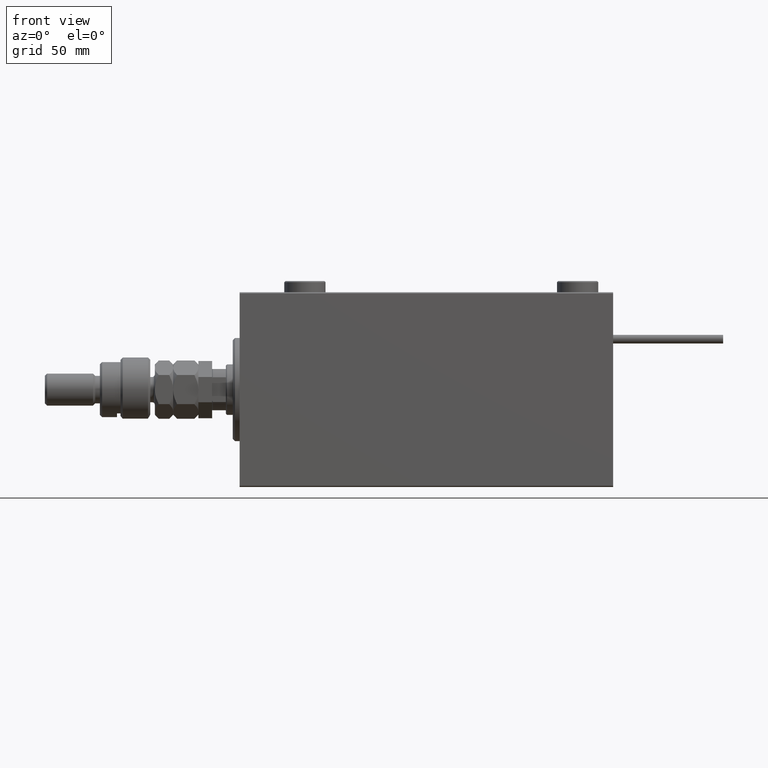
[diagram: clean part render]
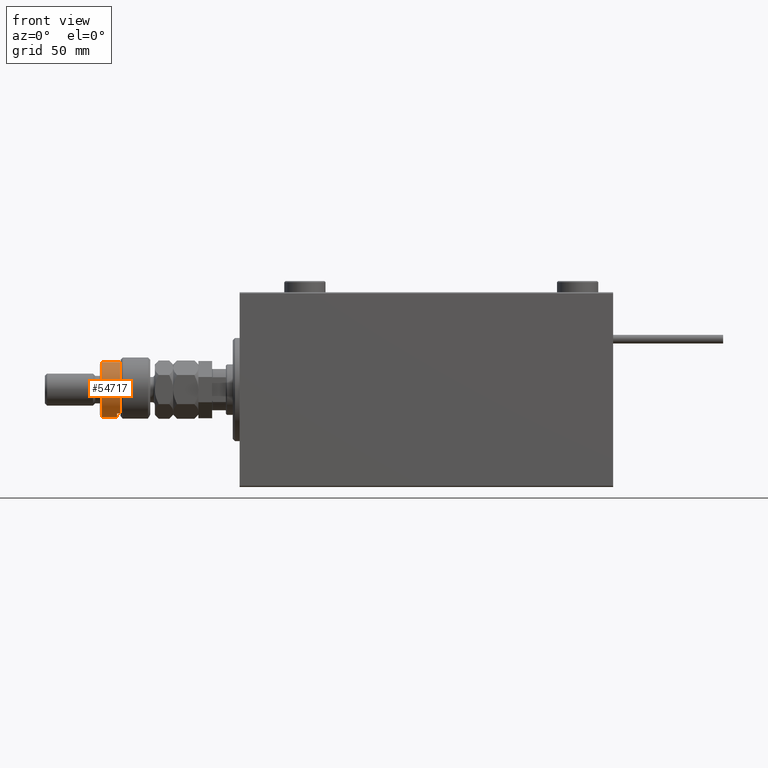
[diagram: same view with one face highlighted and labeled with its STEP entity id]
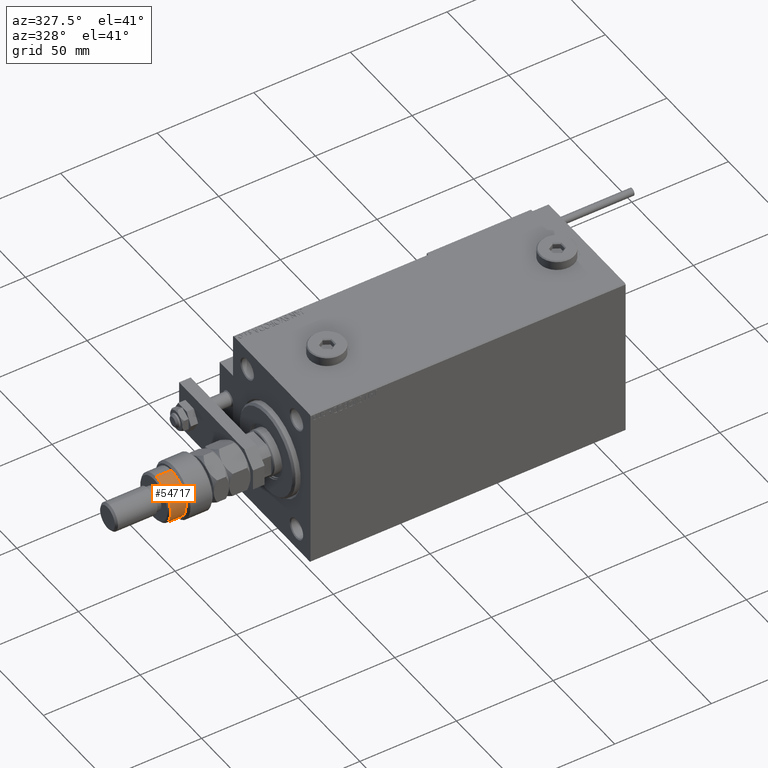
[diagram: same view with one face highlighted and labeled with its STEP entity id]
A machine part, front view. The second image highlights one B-rep face of the part: STEP entity #54717.
A second angle (auxiliary view) of the same face is appended — the face is thin or edge-on in the first view.
In plain terms, the highlighted cylindrical surface (edge-blend (fillet) strip) has radius 12 mm, axis along (1, 0, -0).
Its self-contained STEP definition (entity closure, byte-faithful):
#128 = CIRCLE ( 'NONE', #26053, 12.00000000000000178 ) ;
#645 = ORIENTED_EDGE ( 'NONE', *, *, #54877, .T. ) ;
#754 = CARTESIAN_POINT ( 'NONE',  ( -12.00000000000000178, 0.000000000000000000, 22.00000000000000000 ) ) ;
#2570 = ORIENTED_EDGE ( 'NONE', *, *, #11657, .T. ) ;
#3044 = VERTEX_POINT ( 'NONE', #4050 ) ;
#4050 = CARTESIAN_POINT ( 'NONE',  ( -12.00000000000000178, 0.000000000000000000, 20.99999999999999645 ) ) ;
#5300 = ORIENTED_EDGE ( 'NONE', *, *, #53088, .T. ) ;
#5442 = CARTESIAN_POINT ( 'NONE',  ( 12.00000000000000178, 1.469576158976824144E-15, 22.00000000000000000 ) ) ;
#6163 = EDGE_CURVE ( 'NONE', #9306, #53001, #22360, .T. ) ;
#8373 = CARTESIAN_POINT ( 'NONE',  ( 0.000000000000000000, 0.000000000000000000, 14.50000000000000000 ) ) ;
#9212 = DIRECTION ( 'NONE',  ( -0.000000000000000000, -0.000000000000000000, -1.000000000000000000 ) ) ;
#9306 = VERTEX_POINT ( 'NONE', #32058 ) ;
#9447 = VERTEX_POINT ( 'NONE', #47711 ) ;
#10038 = CARTESIAN_POINT ( 'NONE',  ( -10.39230484541326760, -6.000000000000000000, 22.00000000000000000 ) ) ;
#11657 = EDGE_CURVE ( 'NONE', #22368, #9447, #51218, .T. ) ;
#13142 = FACE_OUTER_BOUND ( 'NONE', #36425, .T. ) ;
#17522 = DIRECTION ( 'NONE',  ( 1.000000000000000000, 0.000000000000000000, 0.000000000000000000 ) ) ;
#18166 = CYLINDRICAL_SURFACE ( 'NONE', #41322, 12.00000000000000178 ) ;
#20051 = ORIENTED_EDGE ( 'NONE', *, *, #6163, .F. ) ;
#20639 = ORIENTED_EDGE ( 'NONE', *, *, #36422, .T. ) ;
#21952 = LINE ( 'NONE', #5442, #52616 ) ;
#22258 = ORIENTED_EDGE ( 'NONE', *, *, #45530, .F. ) ;
#22360 = CIRCLE ( 'NONE', #53664, 12.00000000000000178 ) ;
#22368 = VERTEX_POINT ( 'NONE', #25159 ) ;
#23420 = CARTESIAN_POINT ( 'NONE',  ( 12.00000000000000178, 1.469576158976824144E-15, 20.99999999999999645 ) ) ;
#23509 = AXIS2_PLACEMENT_3D ( 'NONE', #51652, #38779, #17522 ) ;
#25142 = DIRECTION ( 'NONE',  ( -1.000000000000000000, 0.000000000000000000, 0.000000000000000000 ) ) ;
#25159 = CARTESIAN_POINT ( 'NONE',  ( -10.39230484541326760, -6.000000000000000000, 13.00000000000000000 ) ) ;
#25243 = VECTOR ( 'NONE', #35489, 1000.000000000000000 ) ;
#26053 = AXIS2_PLACEMENT_3D ( 'NONE', #31191, #47445, #39324 ) ;
#26224 = DIRECTION ( 'NONE',  ( -0.000000000000000000, -0.000000000000000000, -1.000000000000000000 ) ) ;
#31008 = CARTESIAN_POINT ( 'NONE',  ( 0.000000000000000000, 0.000000000000000000, 22.00000000000000000 ) ) ;
#31191 = CARTESIAN_POINT ( 'NONE',  ( 0.000000000000000000, 0.000000000000000000, 20.99999999999999645 ) ) ;
#32058 = CARTESIAN_POINT ( 'NONE',  ( -10.39230484541326582, -5.999999999999998224, 14.50000000000000000 ) ) ;
#33052 = VECTOR ( 'NONE', #26224, 1000.000000000000000 ) ;
#34544 = DIRECTION ( 'NONE',  ( -0.000000000000000000, -0.000000000000000000, -1.000000000000000000 ) ) ;
#35216 = DIRECTION ( 'NONE',  ( -1.000000000000000000, 0.000000000000000000, 0.000000000000000000 ) ) ;
#35489 = DIRECTION ( 'NONE',  ( -0.000000000000000000, -0.000000000000000000, -1.000000000000000000 ) ) ;
#36422 = EDGE_CURVE ( 'NONE', #3044, #53001, #42482, .T. ) ;
#36425 = EDGE_LOOP ( 'NONE', ( #22258, #5300, #20639, #20051, #645, #2570 ) ) ;
#37945 = CARTESIAN_POINT ( 'NONE',  ( -12.00000000000000178, 0.000000000000000000, 14.50000000000000000 ) ) ;
#38779 = DIRECTION ( 'NONE',  ( 0.000000000000000000, 0.000000000000000000, 1.000000000000000000 ) ) ;
#39324 = DIRECTION ( 'NONE',  ( 1.000000000000000000, 0.000000000000000000, 0.000000000000000000 ) ) ;
#41322 = AXIS2_PLACEMENT_3D ( 'NONE', #31008, #9212, #35216 ) ;
#42482 = LINE ( 'NONE', #754, #33052 ) ;
#45530 = EDGE_CURVE ( 'NONE', #54058, #9447, #21952, .T. ) ;
#47445 = DIRECTION ( 'NONE',  ( 0.000000000000000000, 0.000000000000000000, -1.000000000000000000 ) ) ;
#47711 = CARTESIAN_POINT ( 'NONE',  ( 12.00000000000000178, 1.469576158976824144E-15, 13.00000000000000000 ) ) ;
#48377 = LINE ( 'NONE', #10038, #25243 ) ;
#51196 = DIRECTION ( 'NONE',  ( 0.000000000000000000, 0.000000000000000000, -1.000000000000000000 ) ) ;
#51218 = CIRCLE ( 'NONE', #23509, 12.00000000000000178 ) ;
#51652 = CARTESIAN_POINT ( 'NONE',  ( 0.000000000000000000, 0.000000000000000000, 13.00000000000000000 ) ) ;
#52616 = VECTOR ( 'NONE', #34544, 1000.000000000000000 ) ;
#53001 = VERTEX_POINT ( 'NONE', #37945 ) ;
#53088 = EDGE_CURVE ( 'NONE', #54058, #3044, #128, .T. ) ;
#53664 = AXIS2_PLACEMENT_3D ( 'NONE', #8373, #51196, #25142 ) ;
#54058 = VERTEX_POINT ( 'NONE', #23420 ) ;
#54717 = ADVANCED_FACE ( 'NONE', ( #13142 ), #18166, .T. ) ;
#54877 = EDGE_CURVE ( 'NONE', #9306, #22368, #48377, .T. ) ;